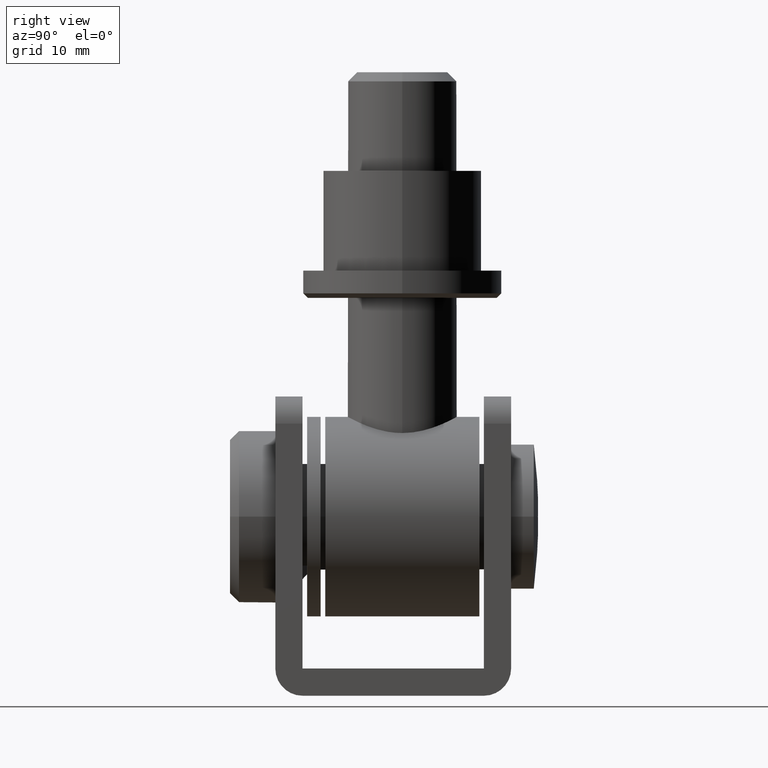
[diagram: clean part render]
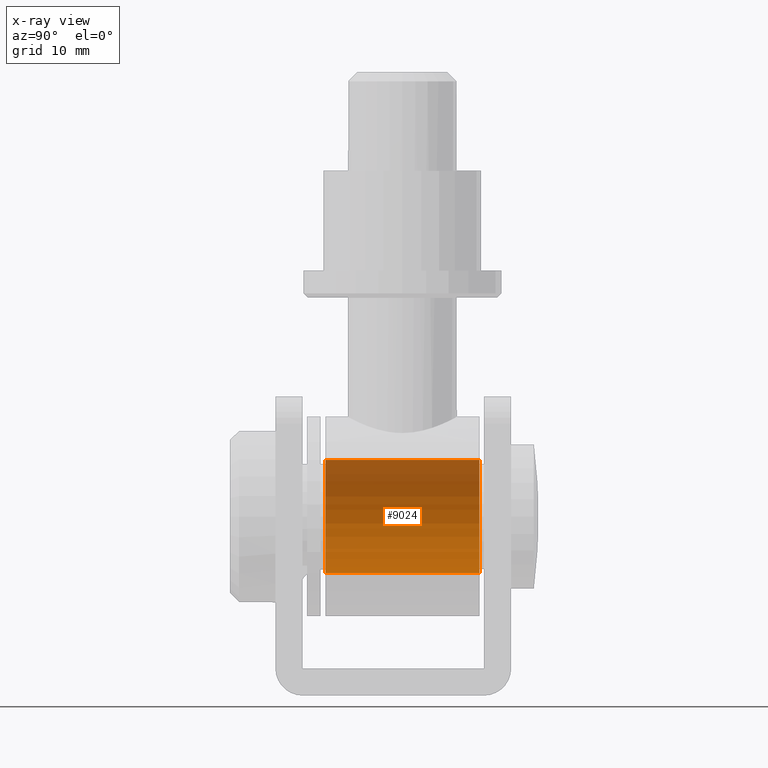
[diagram: x-ray — body ghosted, one internal face saturated and labeled with its STEP entity id]
A machine part, right view, then the same camera in x-ray: the body is ghosted and one INTERNAL B-rep face — a face not visible from any outside direction — is saturated and labeled: STEP entity #9024.
In plain terms, the highlighted cylindrical surface (partial cylindrical patch) has radius 6.25 mm, axis along (-0, -1, -0).
Its self-contained STEP definition (entity closure, byte-faithful):
#571 = EDGE_CURVE ( 'NONE', #7131, #12360, #7118, .T. ) ;
#959 = VERTEX_POINT ( 'NONE', #14795 ) ;
#1318 = CARTESIAN_POINT ( 'NONE',  ( 0.000000000000000000, 8.500000000000000000, 11.00000000000000000 ) ) ;
#1801 = CARTESIAN_POINT ( 'NONE',  ( 0.000000000000000000, 8.500000000000000000, 4.749999999999999112 ) ) ;
#2112 = EDGE_LOOP ( 'NONE', ( #7905, #14151, #11175, #5883 ) ) ;
#2436 = EDGE_CURVE ( 'NONE', #8764, #959, #4693, .T. ) ;
#2706 = CYLINDRICAL_SURFACE ( 'NONE', #3937, 6.250000000000000000 ) ;
#3023 = VECTOR ( 'NONE', #8295, 1000.000000000000000 ) ;
#3063 = CARTESIAN_POINT ( 'NONE',  ( 0.000000000000000000, 8.500000000000000000, 4.749999999999999112 ) ) ;
#3937 = AXIS2_PLACEMENT_3D ( 'NONE', #11650, #11703, #10502 ) ;
#4693 = CIRCLE ( 'NONE', #11728, 6.250000000000001776 ) ;
#5249 = AXIS2_PLACEMENT_3D ( 'NONE', #7987, #15107, #7938 ) ;
#5883 = ORIENTED_EDGE ( 'NONE', *, *, #10567, .F. ) ;
#5918 = DIRECTION ( 'NONE',  ( 0.000000000000000000, 0.000000000000000000, 1.000000000000000000 ) ) ;
#6129 = LINE ( 'NONE', #10534, #3023 ) ;
#6196 = VECTOR ( 'NONE', #6645, 1000.000000000000000 ) ;
#6554 = LINE ( 'NONE', #3063, #6196 ) ;
#6645 = DIRECTION ( 'NONE',  ( -0.000000000000000000, -1.000000000000000000, -0.000000000000000000 ) ) ;
#7118 = CIRCLE ( 'NONE', #5249, 6.250000000000001776 ) ;
#7131 = VERTEX_POINT ( 'NONE', #12436 ) ;
#7905 = ORIENTED_EDGE ( 'NONE', *, *, #2436, .T. ) ;
#7938 = DIRECTION ( 'NONE',  ( 0.000000000000000000, 0.000000000000000000, 1.000000000000000000 ) ) ;
#7987 = CARTESIAN_POINT ( 'NONE',  ( 0.000000000000000000, -8.500000000000000000, 11.00000000000000000 ) ) ;
#8295 = DIRECTION ( 'NONE',  ( -0.000000000000000000, -1.000000000000000000, -0.000000000000000000 ) ) ;
#8764 = VERTEX_POINT ( 'NONE', #1801 ) ;
#9024 = ADVANCED_FACE ( 'NONE', ( #12038 ), #2706, .F. ) ;
#9577 = DIRECTION ( 'NONE',  ( 0.000000000000000000, 1.000000000000000000, 0.000000000000000000 ) ) ;
#10502 = DIRECTION ( 'NONE',  ( 0.000000000000000000, 0.000000000000000000, -1.000000000000000000 ) ) ;
#10534 = CARTESIAN_POINT ( 'NONE',  ( 7.654042494670957606E-16, 8.500000000000000000, 17.25000000000000000 ) ) ;
#10567 = EDGE_CURVE ( 'NONE', #8764, #7131, #6554, .T. ) ;
#11156 = CARTESIAN_POINT ( 'NONE',  ( 7.654042494670955634E-16, -8.500000000000000000, 17.25000000000000000 ) ) ;
#11175 = ORIENTED_EDGE ( 'NONE', *, *, #571, .F. ) ;
#11650 = CARTESIAN_POINT ( 'NONE',  ( 0.000000000000000000, 8.500000000000000000, 11.00000000000000000 ) ) ;
#11703 = DIRECTION ( 'NONE',  ( -0.000000000000000000, -1.000000000000000000, -0.000000000000000000 ) ) ;
#11728 = AXIS2_PLACEMENT_3D ( 'NONE', #1318, #9577, #5918 ) ;
#12038 = FACE_OUTER_BOUND ( 'NONE', #2112, .T. ) ;
#12360 = VERTEX_POINT ( 'NONE', #11156 ) ;
#12436 = CARTESIAN_POINT ( 'NONE',  ( 0.000000000000000000, -8.500000000000000000, 4.749999999999999112 ) ) ;
#13340 = EDGE_CURVE ( 'NONE', #959, #12360, #6129, .T. ) ;
#14151 = ORIENTED_EDGE ( 'NONE', *, *, #13340, .T. ) ;
#14795 = CARTESIAN_POINT ( 'NONE',  ( 7.654042494670955634E-16, 8.500000000000000000, 17.25000000000000000 ) ) ;
#15107 = DIRECTION ( 'NONE',  ( 0.000000000000000000, 1.000000000000000000, 0.000000000000000000 ) ) ;